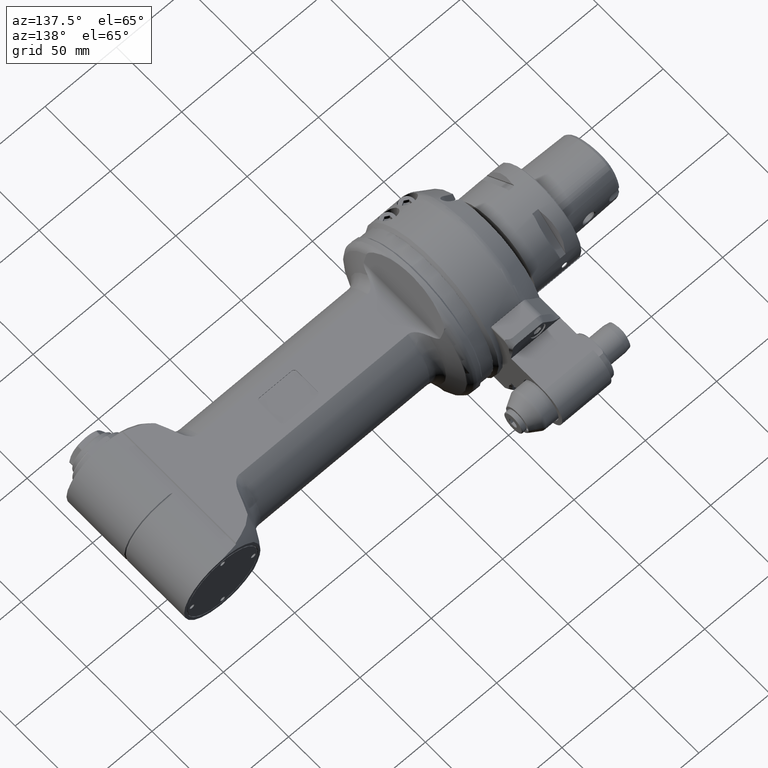
[diagram: clean part render]
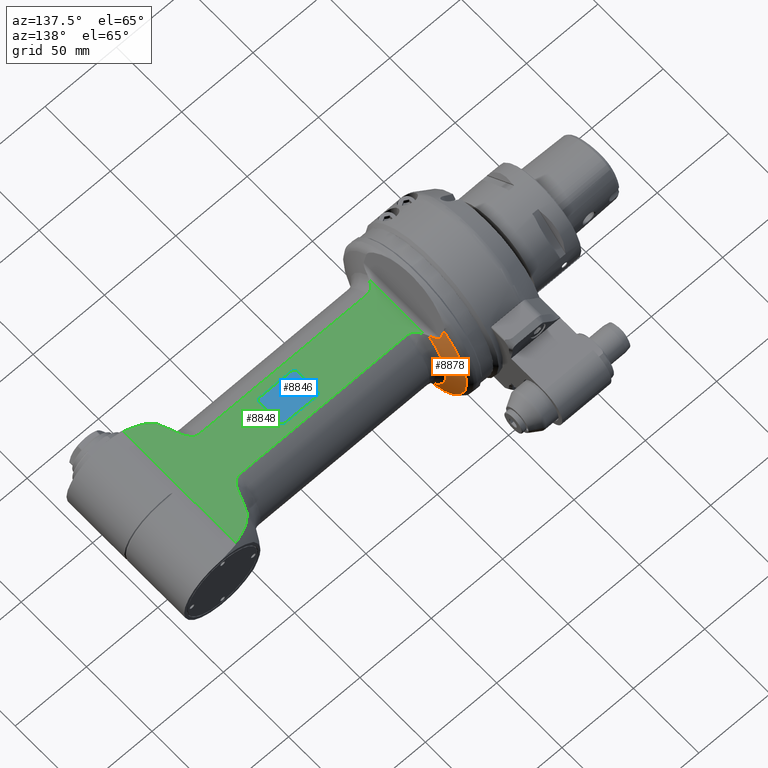
[diagram: same view with three faces highlighted in distinct colors, each labeled with its STEP entity id]
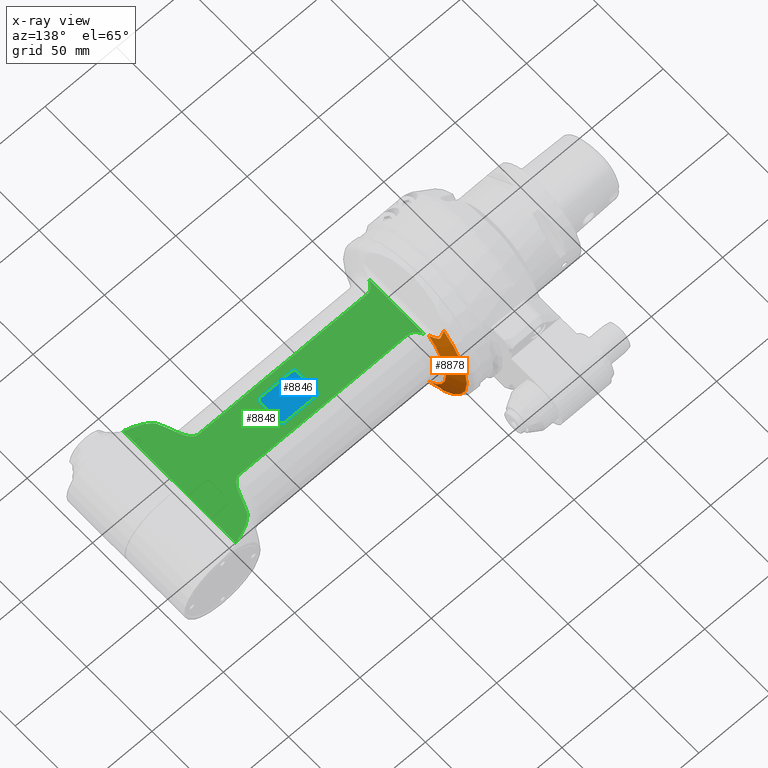
[diagram: x-ray of the same camera — body ghosted, the three highlighted faces saturated]
A machine part, auxiliary view with three faces highlighted in distinct colors.
The next image is the same camera in x-ray (body ghosted, the three faces saturated) — at least one of them is partly hidden behind the body in this view.
Their STEP definitions:

[orange] entity #8878 — the highlighted conical surface has half-angle 65 deg.
#36=ELLIPSE('',#9744,1.98296339590121,1.16481496966376);
#37=ELLIPSE('',#9746,1.98296339590121,1.16481496966375);
#660=CONICAL_SURFACE('',#9743,1.64827057805906,1.13446401379631);
#1078=FACE_OUTER_BOUND('',#1662,.T.);
#1662=EDGE_LOOP('',(#7716,#7717,#7718,#7719,#7720,#7721));
#2119=CIRCLE('',#9721,1.44169503567205);
#2130=CIRCLE('',#9745,1.85484612044606);
#2400=B_SPLINE_CURVE_WITH_KNOTS('',3,(#56886,#56887,#56888,#56889,#56890,
#56891,#56892,#56893,#56894,#56895,#56896,#56897,#56898,#56899,#56900,#56901),
 .UNSPECIFIED.,.F.,.F.,(4,2,2,2,2,2,2,4),(8.88484297411853,8.88995769916191,
8.93555493109357,8.98115216302524,9.07589668030658,9.17064119758792,9.36013023215059,
9.59514006222528),.UNSPECIFIED.);
#2417=B_SPLINE_CURVE_WITH_KNOTS('',3,(#57288,#57289,#57290,#57291,#57292,
#57293,#57294,#57295,#57296,#57297,#57298,#57299,#57300,#57301,#57302,#57303),
 .UNSPECIFIED.,.F.,.F.,(4,2,2,2,2,2,2,4),(-2.96280115665136,-2.95768643160798,
-2.91208919967632,-2.86649196774465,-2.77174745046331,-2.67700293318197,
-2.4875138986193,-2.25250406864222),.UNSPECIFIED.);
#4152=VERTEX_POINT('',#56878);
#4153=VERTEX_POINT('',#56885);
#4224=VERTEX_POINT('',#57285);
#4225=VERTEX_POINT('',#57287);
#4226=VERTEX_POINT('',#57333);
#4227=VERTEX_POINT('',#57335);
#5327=EDGE_CURVE('',#4153,#4152,#2400,.T.);
#5416=EDGE_CURVE('',#4224,#4225,#2417,.T.);
#5419=EDGE_CURVE('',#4225,#4152,#2119,.T.);
#5430=EDGE_CURVE('',#4226,#4224,#36,.T.);
#5431=EDGE_CURVE('',#4227,#4226,#2130,.T.);
#5432=EDGE_CURVE('',#4153,#4227,#37,.T.);
#7716=ORIENTED_EDGE('',*,*,#5327,.T.);
#7717=ORIENTED_EDGE('',*,*,#5419,.F.);
#7718=ORIENTED_EDGE('',*,*,#5416,.F.);
#7719=ORIENTED_EDGE('',*,*,#5430,.F.);
#7720=ORIENTED_EDGE('',*,*,#5431,.F.);
#7721=ORIENTED_EDGE('',*,*,#5432,.F.);
#8878=ADVANCED_FACE('',(#1078),#660,.T.);
#9721=AXIS2_PLACEMENT_3D('',#57310,#11729,#11730);
#9743=AXIS2_PLACEMENT_3D('',#57332,#11773,#11774);
#9744=AXIS2_PLACEMENT_3D('',#57334,#11775,#11776);
#9745=AXIS2_PLACEMENT_3D('',#57336,#11777,#11778);
#9746=AXIS2_PLACEMENT_3D('',#57337,#11779,#11780);
#11729=DIRECTION('center_axis',(1.,0.,0.));
#11730=DIRECTION('ref_axis',(0.,0.639797587775472,-0.768543457897266));
#11773=DIRECTION('center_axis',(-1.,0.,0.));
#11774=DIRECTION('ref_axis',(0.,1.,1.17450172150565E-10));
#11775=DIRECTION('center_axis',(0.939692620785897,0.,-0.342020143325699));
#11776=DIRECTION('ref_axis',(-0.342020143325699,3.16985680890781E-15,-0.939692620785897));
#11777=DIRECTION('center_axis',(-1.,0.,0.));
#11778=DIRECTION('ref_axis',(0.,1.,0.));
#11779=DIRECTION('center_axis',(0.939692620785897,0.,0.342020143325699));
#11780=DIRECTION('ref_axis',(-0.342020143325699,1.39349996950756E-15,0.939692620785897));
#56878=CARTESIAN_POINT('',(1.01337155814016,0.922393006127953,1.10800528794764));
#56885=CARTESIAN_POINT('',(0.907167705424409,1.15441444608071,1.20598107979134));
#56886=CARTESIAN_POINT('Ctrl Pts',(0.907167705424242,1.15441444608044,1.2059810797913));
#56887=CARTESIAN_POINT('Ctrl Pts',(0.907400569370583,1.15436064010383,1.20534129135692));
#56888=CARTESIAN_POINT('Ctrl Pts',(0.907635345906347,1.15429267722904,1.20470917437101));
#56889=CARTESIAN_POINT('Ctrl Pts',(0.909974389933711,1.15348947155251,1.19853064254002));
#56890=CARTESIAN_POINT('Ctrl Pts',(0.912495744870292,1.15154908394791,1.19288739405799));
#56891=CARTESIAN_POINT('Ctrl Pts',(0.917787363643207,1.1458516002294,1.18261079404907));
#56892=CARTESIAN_POINT('Ctrl Pts',(0.920553783278524,1.14212799383908,1.1779569337971));
#56893=CARTESIAN_POINT('Ctrl Pts',(0.928337377255171,1.13050864643465,1.16597308354995));
#56894=CARTESIAN_POINT('Ctrl Pts',(0.933346837259934,1.12149281873692,1.15975347633231));
#56895=CARTESIAN_POINT('Ctrl Pts',(0.943193765965154,1.10237522362485,1.14884864290702));
#56896=CARTESIAN_POINT('Ctrl Pts',(0.94802052386084,1.09222179241078,1.14424453302383));
#56897=CARTESIAN_POINT('Ctrl Pts',(0.962387348972176,1.06040414586269,1.13196090177535));
#56898=CARTESIAN_POINT('Ctrl Pts',(0.971769640119683,1.03748392116421,1.12584333687446));
#56899=CARTESIAN_POINT('Ctrl Pts',(0.992318011366266,0.98392245006033,1.11486513783193));
#56900=CARTESIAN_POINT('Ctrl Pts',(1.00325275214586,0.952965200553226,1.11078955891211));
#56901=CARTESIAN_POINT('Ctrl Pts',(1.01337155813942,0.922393006127625,1.10800528794858));
#57285=CARTESIAN_POINT('',(0.907167705424409,1.15441444608071,-1.20598107979134));
#57287=CARTESIAN_POINT('',(1.01337155812677,0.922393006165748,-1.10800528795157));
#57288=CARTESIAN_POINT('Ctrl Pts',(0.907167705424242,1.15441444608044,-1.2059810797913));
#57289=CARTESIAN_POINT('Ctrl Pts',(0.907400569370583,1.15436064010383,-1.20534129135692));
#57290=CARTESIAN_POINT('Ctrl Pts',(0.907635345906347,1.15429267722904,-1.20470917437101));
#57291=CARTESIAN_POINT('Ctrl Pts',(0.909974389933711,1.15348947155251,-1.19853064254002));
#57292=CARTESIAN_POINT('Ctrl Pts',(0.912495744870292,1.15154908394791,-1.19288739405799));
#57293=CARTESIAN_POINT('Ctrl Pts',(0.917787363643207,1.1458516002294,-1.18261079404907));
#57294=CARTESIAN_POINT('Ctrl Pts',(0.920553783278524,1.14212799383908,-1.1779569337971));
#57295=CARTESIAN_POINT('Ctrl Pts',(0.928337377255171,1.13050864643465,-1.16597308354995));
#57296=CARTESIAN_POINT('Ctrl Pts',(0.933346837259934,1.12149281873692,-1.15975347633231));
#57297=CARTESIAN_POINT('Ctrl Pts',(0.943193765965153,1.10237522362485,-1.14884864290703));
#57298=CARTESIAN_POINT('Ctrl Pts',(0.94802052386084,1.09222179241078,-1.14424453302383));
#57299=CARTESIAN_POINT('Ctrl Pts',(0.962387348972176,1.06040414586269,-1.13196090177535));
#57300=CARTESIAN_POINT('Ctrl Pts',(0.971769640119683,1.03748392116421,-1.12584333687446));
#57301=CARTESIAN_POINT('Ctrl Pts',(0.99231801136154,0.983922450072646,-1.11486513783446));
#57302=CARTESIAN_POINT('Ctrl Pts',(1.00325275213677,0.952965200578941,-1.11078955891551));
#57303=CARTESIAN_POINT('Ctrl Pts',(1.01337155812682,0.92239300616572,-1.10800528795204));
#57310=CARTESIAN_POINT('Origin',(1.01337155813858,0.,0.));
#57332=CARTESIAN_POINT('Origin',(0.917043800735827,0.,0.));
#57333=CARTESIAN_POINT('',(0.820716043487988,1.16479493723232,-1.44350506874806));
#57334=CARTESIAN_POINT('Origin',(0.81673846233816,2.09805925913415E-15,
-1.45443338322853));
#57335=CARTESIAN_POINT('',(0.820716043325997,1.1647949371114,1.44350506929202));
#57336=CARTESIAN_POINT('Origin',(0.820716043333464,0.,0.));
#57337=CARTESIAN_POINT('Origin',(0.816738462338159,6.99353086378051E-16,
1.45443338322852));

[blue] entity #8846 — the highlighted planar face has unit normal (0, -0, 1).
#517=PLANE('',#9668);
#1046=FACE_OUTER_BOUND('',#1626,.T.);
#1626=EDGE_LOOP('',(#7503,#7504,#7505,#7506,#7507,#7508,#7509,#7510));
#2090=CIRCLE('',#9669,0.078740157480315);
#2091=CIRCLE('',#9670,0.078740157480315);
#2092=CIRCLE('',#9671,0.078740157480315);
#2093=CIRCLE('',#9672,0.078740157480315);
#2812=LINE('',#56745,#3368);
#2816=LINE('',#56755,#3372);
#2817=LINE('',#56759,#3373);
#2818=LINE('',#56763,#3374);
#3368=VECTOR('',#11585,0.610236220472441);
#3372=VECTOR('',#11593,0.885826771653543);
#3373=VECTOR('',#11596,0.610236220472441);
#3374=VECTOR('',#11599,0.885826771653543);
#4120=VERTEX_POINT('',#56743);
#4121=VERTEX_POINT('',#56744);
#4124=VERTEX_POINT('',#56752);
#4125=VERTEX_POINT('',#56754);
#4126=VERTEX_POINT('',#56756);
#4127=VERTEX_POINT('',#56758);
#4128=VERTEX_POINT('',#56760);
#4129=VERTEX_POINT('',#56762);
#5291=EDGE_CURVE('',#4120,#4121,#2812,.T.);
#5295=EDGE_CURVE('',#4121,#4124,#2090,.T.);
#5296=EDGE_CURVE('',#4124,#4125,#2816,.T.);
#5297=EDGE_CURVE('',#4125,#4126,#2091,.T.);
#5298=EDGE_CURVE('',#4126,#4127,#2817,.T.);
#5299=EDGE_CURVE('',#4127,#4128,#2092,.T.);
#5300=EDGE_CURVE('',#4128,#4129,#2818,.T.);
#5301=EDGE_CURVE('',#4120,#4129,#2093,.T.);
#7503=ORIENTED_EDGE('',*,*,#5291,.T.);
#7504=ORIENTED_EDGE('',*,*,#5295,.T.);
#7505=ORIENTED_EDGE('',*,*,#5296,.T.);
#7506=ORIENTED_EDGE('',*,*,#5297,.T.);
#7507=ORIENTED_EDGE('',*,*,#5298,.T.);
#7508=ORIENTED_EDGE('',*,*,#5299,.T.);
#7509=ORIENTED_EDGE('',*,*,#5300,.T.);
#7510=ORIENTED_EDGE('',*,*,#5301,.F.);
#8846=ADVANCED_FACE('',(#1046),#517,.T.);
#9668=AXIS2_PLACEMENT_3D('',#56751,#11589,#11590);
#9669=AXIS2_PLACEMENT_3D('',#56753,#11591,#11592);
#9670=AXIS2_PLACEMENT_3D('',#56757,#11594,#11595);
#9671=AXIS2_PLACEMENT_3D('',#56761,#11597,#11598);
#9672=AXIS2_PLACEMENT_3D('',#56764,#11600,#11601);
#11585=DIRECTION('',(0.,-1.,0.));
#11589=DIRECTION('center_axis',(0.,0.,1.));
#11590=DIRECTION('ref_axis',(1.,0.,0.));
#11591=DIRECTION('center_axis',(0.,0.,1.));
#11592=DIRECTION('ref_axis',(-1.,0.,0.));
#11593=DIRECTION('',(1.,0.,0.));
#11594=DIRECTION('center_axis',(0.,0.,1.));
#11595=DIRECTION('ref_axis',(0.,-1.,0.));
#11596=DIRECTION('',(0.,1.,0.));
#11597=DIRECTION('center_axis',(0.,0.,1.));
#11598=DIRECTION('ref_axis',(1.,0.,0.));
#11599=DIRECTION('',(-1.,0.,0.));
#11600=DIRECTION('center_axis',(0.,0.,-1.));
#11601=DIRECTION('ref_axis',(-1.,0.,0.));
#56743=CARTESIAN_POINT('',(3.52362204724409,0.30511811023622,1.09055118110236));
#56744=CARTESIAN_POINT('',(3.52362204724409,-0.30511811023622,1.09055118110236));
#56745=CARTESIAN_POINT('',(3.52362204724409,0.30511811023622,1.09055118110236));
#56751=CARTESIAN_POINT('Origin',(0.,0.,1.09055118110236));
#56752=CARTESIAN_POINT('',(3.60236220472441,-0.383858267716535,1.09055118110236));
#56753=CARTESIAN_POINT('Origin',(3.60236220472441,-0.30511811023622,1.09055118110236));
#56754=CARTESIAN_POINT('',(4.48818897637795,-0.383858267716535,1.09055118110236));
#56755=CARTESIAN_POINT('',(3.60236220472441,-0.383858267716535,1.09055118110236));
#56756=CARTESIAN_POINT('',(4.56692913385827,-0.30511811023622,1.09055118110236));
#56757=CARTESIAN_POINT('Origin',(4.48818897637795,-0.30511811023622,1.09055118110236));
#56758=CARTESIAN_POINT('',(4.56692913385827,0.30511811023622,1.09055118110236));
#56759=CARTESIAN_POINT('',(4.56692913385827,-0.30511811023622,1.09055118110236));
#56760=CARTESIAN_POINT('',(4.48818897637795,0.383858267716535,1.09055118110236));
#56761=CARTESIAN_POINT('Origin',(4.48818897637795,0.30511811023622,1.09055118110236));
#56762=CARTESIAN_POINT('',(3.60236220472441,0.383858267716535,1.09055118110236));
#56763=CARTESIAN_POINT('',(4.48818897637795,0.383858267716535,1.09055118110236));
#56764=CARTESIAN_POINT('Origin',(3.60236220472441,0.30511811023622,1.09055118110236));

[green] entity #8848 — the highlighted planar face has unit normal (-0, 0, -1).
#168=FACE_BOUND('',#1629,.T.);
#291=(
BOUNDED_CURVE()
B_SPLINE_CURVE(2,(#56804,#56805,#56806),.UNSPECIFIED.,.F.,.F.)
B_SPLINE_CURVE_WITH_KNOTS((3,3),(2.03905498935001,3.44407312542204),
 .UNSPECIFIED.)
CURVE()
GEOMETRIC_REPRESENTATION_ITEM()
RATIONAL_B_SPLINE_CURVE((1.39135917189137,1.50428489588985,1.58701905543919))
REPRESENTATION_ITEM('')
);
#292=(
BOUNDED_CURVE()
B_SPLINE_CURVE(2,(#56808,#56809,#56810),.UNSPECIFIED.,.F.,.F.)
B_SPLINE_CURVE_WITH_KNOTS((3,3),(0.672694757765938,1.0163582077007),
 .UNSPECIFIED.)
CURVE()
GEOMETRIC_REPRESENTATION_ITEM()
RATIONAL_B_SPLINE_CURVE((1.09614308098479,1.11935470084547,1.14119005691676))
REPRESENTATION_ITEM('')
);
#293=(
BOUNDED_CURVE()
B_SPLINE_CURVE(2,(#56812,#56813,#56814),.UNSPECIFIED.,.F.,.F.)
B_SPLINE_CURVE_WITH_KNOTS((3,3),(0.271465996187347,0.534546799751592),
 .UNSPECIFIED.)
CURVE()
GEOMETRIC_REPRESENTATION_ITEM()
RATIONAL_B_SPLINE_CURVE((1.02892391271194,1.04269703320803,1.05600085778296))
REPRESENTATION_ITEM('')
);
#294=(
BOUNDED_CURVE()
B_SPLINE_CURVE(2,(#56816,#56817,#56818),.UNSPECIFIED.,.F.,.F.)
B_SPLINE_CURVE_WITH_KNOTS((3,3),(0.0555374134032069,0.267471577371549),
 .UNSPECIFIED.)
CURVE()
GEOMETRIC_REPRESENTATION_ITEM()
RATIONAL_B_SPLINE_CURVE((1.00475750584163,1.01380939095675,1.022666035555))
REPRESENTATION_ITEM('')
);
#295=(
BOUNDED_CURVE()
B_SPLINE_CURVE(2,(#56822,#56823,#56824),.UNSPECIFIED.,.F.,.F.)
B_SPLINE_CURVE_WITH_KNOTS((3,3),(19.4953049575878,19.7072391637784),
 .UNSPECIFIED.)
CURVE()
GEOMETRIC_REPRESENTATION_ITEM()
RATIONAL_B_SPLINE_CURVE((1.02266614007333,1.01380949456991,1.00475760852967))
REPRESENTATION_ITEM('')
);
#296=(
BOUNDED_CURVE()
B_SPLINE_CURVE(2,(#56826,#56827,#56828),.UNSPECIFIED.,.F.,.F.)
B_SPLINE_CURVE_WITH_KNOTS((3,3),(15.4491780876951,15.712242917743),
 .UNSPECIFIED.)
CURVE()
GEOMETRIC_REPRESENTATION_ITEM()
RATIONAL_B_SPLINE_CURVE((1.0559652880217,1.0426619115656,1.02888925499584))
REPRESENTATION_ITEM('')
);
#297=(
BOUNDED_CURVE()
B_SPLINE_CURVE(2,(#56830,#56831,#56832),.UNSPECIFIED.,.F.,.F.)
B_SPLINE_CURVE_WITH_KNOTS((3,3),(11.9199199966806,12.263555341558),
 .UNSPECIFIED.)
CURVE()
GEOMETRIC_REPRESENTATION_ITEM()
RATIONAL_B_SPLINE_CURVE((1.14112648064763,1.11929234103495,1.09608201430523))
REPRESENTATION_ITEM('')
);
#298=(
BOUNDED_CURVE()
B_SPLINE_CURVE(2,(#56834,#56835,#56836),.UNSPECIFIED.,.F.,.F.)
B_SPLINE_CURVE_WITH_KNOTS((3,3),(11.1423435471514,12.5471695034818),
 .UNSPECIFIED.)
CURVE()
GEOMETRIC_REPRESENTATION_ITEM()
RATIONAL_B_SPLINE_CURVE((1.58681804929736,1.50409436855994,1.39118294732867))
REPRESENTATION_ITEM('')
);
#518=PLANE('',#9675);
#1048=FACE_OUTER_BOUND('',#1628,.T.);
#1628=EDGE_LOOP('',(#7515,#7516,#7517,#7518,#7519,#7520,#7521,#7522,#7523,
#7524,#7525,#7526,#7527,#7528,#7529,#7530));
#1629=EDGE_LOOP('',(#7531,#7532,#7533,#7534,#7535,#7536,#7537,#7538));
#2094=CIRCLE('',#9674,0.078740157480315);
#2095=CIRCLE('',#9676,0.078740157480315);
#2096=CIRCLE('',#9677,0.078740157480315);
#2097=CIRCLE('',#9678,0.078740157480315);
#2395=B_SPLINE_CURVE_WITH_KNOTS('',3,(#56774,#56775,#56776,#56777,#56778,
#56779,#56780,#56781,#56782,#56783,#56784,#56785),.UNSPECIFIED.,.F.,.F.,
(4,2,2,2,2,4),(-2.93597407218818,-2.82337724519284,-2.69378102431655,-2.51186335157645,
-2.32994567883634,-2.12339512890314),.UNSPECIFIED.);
#2396=B_SPLINE_CURVE_WITH_KNOTS('',3,(#56789,#56790,#56791,#56792,#56793,
#56794,#56795,#56796,#56797,#56798,#56799,#56800,#56801,#56802),
 .UNSPECIFIED.,.F.,.F.,(4,2,2,2,2,2,4),(-3.92307824233944,-3.77852981809237,
-3.54200246554002,-3.36008479279991,-3.17816712005981,-3.04857089918351,
-2.93597407218818),.UNSPECIFIED.);
#2397=B_SPLINE_CURVE_WITH_KNOTS('',3,(#56838,#56839,#56840,#56841,#56842,
#56843,#56844,#56845,#56846,#56847,#56848,#56849,#56850,#56851),
 .UNSPECIFIED.,.F.,.F.,(4,2,2,2,2,2,4),(-2.93597407218818,-2.82337724519285,
-2.69378102431655,-2.51186335157645,-2.32994567883634,-2.09341832628399,
-1.94886990203693),.UNSPECIFIED.);
#2398=B_SPLINE_CURVE_WITH_KNOTS('',3,(#56854,#56855,#56856,#56857,#56858,
#56859,#56860,#56861,#56862,#56863,#56864,#56865),.UNSPECIFIED.,.F.,.F.,
(4,2,2,2,2,4),(-3.74855301568806,-3.54200246554002,-3.36008479279991,-3.17816712005981,
-3.04857089918352,-2.93597407218818),.UNSPECIFIED.);
#2814=LINE('',#56749,#3370);
#2820=LINE('',#56772,#3376);
#2821=LINE('',#56787,#3377);
#2822=LINE('',#56820,#3378);
#2823=LINE('',#56853,#3379);
#2824=LINE('',#56867,#3380);
#2825=LINE('',#56871,#3381);
#2826=LINE('',#56875,#3382);
#3370=VECTOR('',#11587,0.610236220472441);
#3376=VECTOR('',#11609,1.64449587747835);
#3377=VECTOR('',#11610,4.66106684935039);
#3378=VECTOR('',#11611,0.393700787401575);
#3379=VECTOR('',#11612,4.66106684935039);
#3380=VECTOR('',#11613,0.885826771653543);
#3381=VECTOR('',#11616,0.610236220472441);
#3382=VECTOR('',#11619,0.885826771653543);
#4122=VERTEX_POINT('',#56746);
#4123=VERTEX_POINT('',#56748);
#4130=VERTEX_POINT('',#56766);
#4131=VERTEX_POINT('',#56770);
#4132=VERTEX_POINT('',#56771);
#4133=VERTEX_POINT('',#56773);
#4134=VERTEX_POINT('',#56786);
#4135=VERTEX_POINT('',#56788);
#4136=VERTEX_POINT('',#56803);
#4137=VERTEX_POINT('',#56807);
#4138=VERTEX_POINT('',#56811);
#4139=VERTEX_POINT('',#56815);
#4140=VERTEX_POINT('',#56819);
#4141=VERTEX_POINT('',#56821);
#4142=VERTEX_POINT('',#56825);
#4143=VERTEX_POINT('',#56829);
#4144=VERTEX_POINT('',#56833);
#4145=VERTEX_POINT('',#56837);
#4146=VERTEX_POINT('',#56852);
#4147=VERTEX_POINT('',#56866);
#4148=VERTEX_POINT('',#56868);
#4149=VERTEX_POINT('',#56870);
#4150=VERTEX_POINT('',#56872);
#4151=VERTEX_POINT('',#56874);
#5293=EDGE_CURVE('',#4123,#4122,#2814,.T.);
#5303=EDGE_CURVE('',#4122,#4130,#2094,.T.);
#5304=EDGE_CURVE('',#4131,#4132,#2820,.T.);
#5305=EDGE_CURVE('',#4133,#4131,#2395,.T.);
#5306=EDGE_CURVE('',#4134,#4133,#2821,.T.);
#5307=EDGE_CURVE('',#4135,#4134,#2396,.T.);
#5308=EDGE_CURVE('',#4136,#4135,#291,.T.);
#5309=EDGE_CURVE('',#4137,#4136,#292,.T.);
#5310=EDGE_CURVE('',#4138,#4137,#293,.T.);
#5311=EDGE_CURVE('',#4139,#4138,#294,.T.);
#5312=EDGE_CURVE('',#4140,#4139,#2822,.T.);
#5313=EDGE_CURVE('',#4141,#4140,#295,.T.);
#5314=EDGE_CURVE('',#4142,#4141,#296,.T.);
#5315=EDGE_CURVE('',#4143,#4142,#297,.T.);
#5316=EDGE_CURVE('',#4144,#4143,#298,.T.);
#5317=EDGE_CURVE('',#4145,#4144,#2397,.T.);
#5318=EDGE_CURVE('',#4146,#4145,#2823,.T.);
#5319=EDGE_CURVE('',#4132,#4146,#2398,.T.);
#5320=EDGE_CURVE('',#4130,#4147,#2824,.T.);
#5321=EDGE_CURVE('',#4147,#4148,#2095,.T.);
#5322=EDGE_CURVE('',#4148,#4149,#2825,.T.);
#5323=EDGE_CURVE('',#4149,#4150,#2096,.T.);
#5324=EDGE_CURVE('',#4150,#4151,#2826,.T.);
#5325=EDGE_CURVE('',#4151,#4123,#2097,.T.);
#7515=ORIENTED_EDGE('',*,*,#5304,.F.);
#7516=ORIENTED_EDGE('',*,*,#5305,.F.);
#7517=ORIENTED_EDGE('',*,*,#5306,.F.);
#7518=ORIENTED_EDGE('',*,*,#5307,.F.);
#7519=ORIENTED_EDGE('',*,*,#5308,.F.);
#7520=ORIENTED_EDGE('',*,*,#5309,.F.);
#7521=ORIENTED_EDGE('',*,*,#5310,.F.);
#7522=ORIENTED_EDGE('',*,*,#5311,.F.);
#7523=ORIENTED_EDGE('',*,*,#5312,.F.);
#7524=ORIENTED_EDGE('',*,*,#5313,.F.);
#7525=ORIENTED_EDGE('',*,*,#5314,.F.);
#7526=ORIENTED_EDGE('',*,*,#5315,.F.);
#7527=ORIENTED_EDGE('',*,*,#5316,.F.);
#7528=ORIENTED_EDGE('',*,*,#5317,.F.);
#7529=ORIENTED_EDGE('',*,*,#5318,.F.);
#7530=ORIENTED_EDGE('',*,*,#5319,.F.);
#7531=ORIENTED_EDGE('',*,*,#5293,.T.);
#7532=ORIENTED_EDGE('',*,*,#5303,.T.);
#7533=ORIENTED_EDGE('',*,*,#5320,.T.);
#7534=ORIENTED_EDGE('',*,*,#5321,.T.);
#7535=ORIENTED_EDGE('',*,*,#5322,.T.);
#7536=ORIENTED_EDGE('',*,*,#5323,.T.);
#7537=ORIENTED_EDGE('',*,*,#5324,.T.);
#7538=ORIENTED_EDGE('',*,*,#5325,.T.);
#8848=ADVANCED_FACE('',(#1048,#168),#518,.F.);
#9674=AXIS2_PLACEMENT_3D('',#56768,#11605,#11606);
#9675=AXIS2_PLACEMENT_3D('',#56769,#11607,#11608);
#9676=AXIS2_PLACEMENT_3D('',#56869,#11614,#11615);
#9677=AXIS2_PLACEMENT_3D('',#56873,#11617,#11618);
#9678=AXIS2_PLACEMENT_3D('',#56876,#11620,#11621);
#11587=DIRECTION('',(0.,1.,0.));
#11605=DIRECTION('center_axis',(0.,0.,-1.));
#11606=DIRECTION('ref_axis',(-1.,0.,0.));
#11607=DIRECTION('center_axis',(0.,0.,-1.));
#11608=DIRECTION('ref_axis',(-1.,0.,0.));
#11609=DIRECTION('',(-2.605461445507E-11,1.,6.049025988375E-13));
#11610=DIRECTION('',(-1.,0.,0.));
#11611=DIRECTION('',(0.,-1.,0.));
#11612=DIRECTION('',(1.,0.,0.));
#11613=DIRECTION('',(1.,0.,0.));
#11614=DIRECTION('center_axis',(0.,0.,-1.));
#11615=DIRECTION('ref_axis',(0.,1.,0.));
#11616=DIRECTION('',(0.,-1.,0.));
#11617=DIRECTION('center_axis',(0.,0.,-1.));
#11618=DIRECTION('ref_axis',(1.,0.,0.));
#11619=DIRECTION('',(-1.,0.,0.));
#11620=DIRECTION('center_axis',(0.,0.,-1.));
#11621=DIRECTION('ref_axis',(4.973799150321E-14,-1.,0.));
#56746=CARTESIAN_POINT('',(3.52362204724409,0.30511811023622,1.10236220472441));
#56748=CARTESIAN_POINT('',(3.52362204724409,-0.30511811023622,1.10236220472441));
#56749=CARTESIAN_POINT('',(3.52362204724409,-0.30511811023622,1.10236220472441));
#56766=CARTESIAN_POINT('',(3.60236220472441,0.383858267716535,1.10236220472441));
#56768=CARTESIAN_POINT('Origin',(3.60236220472441,0.30511811023622,1.10236220472441));
#56769=CARTESIAN_POINT('Origin',(2.5606268359874,-1.77165354330709,1.10236220472441));
#56770=CARTESIAN_POINT('',(1.05515079532047,-0.822247938698031,1.10236220472402));
#56771=CARTESIAN_POINT('',(1.05515079527756,0.822247938779921,1.1023622047252));
#56772=CARTESIAN_POINT('',(1.05515079532047,-0.822247938698031,1.10236220472402));
#56773=CARTESIAN_POINT('',(1.29882282964606,-0.609918637198032,1.10236220472441));
#56774=CARTESIAN_POINT('Ctrl Pts',(1.29882282964606,-0.609918637198018,
1.10236220472441));
#56775=CARTESIAN_POINT('Ctrl Pts',(1.28404634316374,-0.609918637198018,
1.10236220472441));
#56776=CARTESIAN_POINT('Ctrl Pts',(1.2665310619091,-0.612681077884935,1.10236220472441));
#56777=CARTESIAN_POINT('Ctrl Pts',(1.23613090131474,-0.621957083575724,
1.10236220472441));
#56778=CARTESIAN_POINT('Ctrl Pts',(1.21775821384649,-0.630843346219757,
1.10236220472441));
#56779=CARTESIAN_POINT('Ctrl Pts',(1.18322042895185,-0.652715813008636,
1.10236220472441));
#56780=CARTESIAN_POINT('Ctrl Pts',(1.16341058116586,-0.669610331500759,
1.10236220472441));
#56781=CARTESIAN_POINT('Ctrl Pts',(1.12759374615375,-0.707291425706547,
1.10236220472441));
#56782=CARTESIAN_POINT('Ctrl Pts',(1.11154299302949,-0.728036376621218,
1.10236220472441));
#56783=CARTESIAN_POINT('Ctrl Pts',(1.08290520393707,-0.770212741657021,
1.10236220472441));
#56784=CARTESIAN_POINT('Ctrl Pts',(1.06817565313616,-0.795647902450741,
1.10236220472441));
#56785=CARTESIAN_POINT('Ctrl Pts',(1.0551507953193,-0.822247938697457,1.10236220472441));
#56786=CARTESIAN_POINT('',(5.95988967899606,-0.609918637198032,1.10236220472441));
#56787=CARTESIAN_POINT('',(5.95988967899606,-0.609918637198032,1.10236220472441));
#56788=CARTESIAN_POINT('',(6.23265358570079,-0.890843188896457,1.10236220472441));
#56789=CARTESIAN_POINT('Ctrl Pts',(6.23265358569994,-0.890843188896763,
1.10236220472441));
#56790=CARTESIAN_POINT('Ctrl Pts',(6.22579523798971,-0.871943804981987,
1.10236220472441));
#56791=CARTESIAN_POINT('Ctrl Pts',(6.21789661909274,-0.852710079953337,
1.10236220472441));
#56792=CARTESIAN_POINT('Ctrl Pts',(6.19477582516281,-0.80310686554737,1.10236220472441));
#56793=CARTESIAN_POINT('Ctrl Pts',(6.17801718778163,-0.773467351676782,
1.10236220472441));
#56794=CARTESIAN_POINT('Ctrl Pts',(6.14716951561264,-0.728036376621217,
1.10236220472441));
#56795=CARTESIAN_POINT('Ctrl Pts',(6.13111876248837,-0.707291425706547,
1.10236220472441));
#56796=CARTESIAN_POINT('Ctrl Pts',(6.09530192747626,-0.669610331500759,
1.10236220472441));
#56797=CARTESIAN_POINT('Ctrl Pts',(6.07549207969027,-0.652715813008636,
1.10236220472441));
#56798=CARTESIAN_POINT('Ctrl Pts',(6.04095429479564,-0.630843346219757,
1.10236220472441));
#56799=CARTESIAN_POINT('Ctrl Pts',(6.02258160732738,-0.621957083575723,
1.10236220472441));
#56800=CARTESIAN_POINT('Ctrl Pts',(5.99218144673303,-0.612681077884934,
1.10236220472441));
#56801=CARTESIAN_POINT('Ctrl Pts',(5.97466616547839,-0.609918637198018,
1.10236220472441));
#56802=CARTESIAN_POINT('Ctrl Pts',(5.95988967899606,-0.609918637198018,
1.10236220472441));
#56803=CARTESIAN_POINT('',(6.4372265157276,-1.38692243730871,1.10236220472421));
#56804=CARTESIAN_POINT('Ctrl Pts',(6.43722651572742,-1.38692243730977,1.10236220472441));
#56805=CARTESIAN_POINT('Ctrl Pts',(6.31266287166401,-1.11132285485823,1.10236220472441));
#56806=CARTESIAN_POINT('Ctrl Pts',(6.23265358569894,-0.890843188897127,
1.10236220472441));
#56807=CARTESIAN_POINT('',(6.62624240498402,-1.53492824327766,1.10236220472428));
#56808=CARTESIAN_POINT('Ctrl Pts',(6.62624240498941,-1.53492824328213,1.10236220472441));
#56809=CARTESIAN_POINT('Ctrl Pts',(6.526947177898,-1.45853814987678,1.10236220472441));
#56810=CARTESIAN_POINT('Ctrl Pts',(6.43722651572794,-1.38692243730937,1.10236220472441));
#56811=CARTESIAN_POINT('',(6.84257920966527,-1.63089095883542,1.10236220472438));
#56812=CARTESIAN_POINT('Ctrl Pts',(6.84257920966725,-1.63089095883689,1.10236220472441));
#56813=CARTESIAN_POINT('Ctrl Pts',(6.73113199291576,-1.58193038967515,1.10236220472441));
#56814=CARTESIAN_POINT('Ctrl Pts',(6.62624240498844,-1.53492824327984,1.10236220472441));
#56815=CARTESIAN_POINT('',(7.04685039370079,-1.69655254219433,1.10236220472441));
#56816=CARTESIAN_POINT('Ctrl Pts',(7.04685039370079,-1.69655254219433,1.10236220472441));
#56817=CARTESIAN_POINT('Ctrl Pts',(6.94269932503141,-1.66327157856401,1.10236220472441));
#56818=CARTESIAN_POINT('Ctrl Pts',(6.84257920966719,-1.63089095883557,1.10236220472441));
#56819=CARTESIAN_POINT('',(7.04685039370079,1.69655254219433,1.10236220472441));
#56820=CARTESIAN_POINT('',(7.04685039370079,-0.885826771653543,1.10236220472441));
#56821=CARTESIAN_POINT('',(6.84257920966527,1.63089095883542,1.10236220472438));
#56822=CARTESIAN_POINT('Ctrl Pts',(6.84257920966719,1.63089095883557,1.10236220472441));
#56823=CARTESIAN_POINT('Ctrl Pts',(6.94269932503141,1.66327157856401,1.10236220472441));
#56824=CARTESIAN_POINT('Ctrl Pts',(7.04685039370079,1.69655254219433,1.10236220472441));
#56825=CARTESIAN_POINT('',(6.62624240498402,1.53492824327766,1.10236220472428));
#56826=CARTESIAN_POINT('Ctrl Pts',(6.62624240498844,1.53492824327984,1.10236220472441));
#56827=CARTESIAN_POINT('Ctrl Pts',(6.73113199291576,1.58193038967515,1.10236220472441));
#56828=CARTESIAN_POINT('Ctrl Pts',(6.84257920966726,1.63089095883689,1.10236220472441));
#56829=CARTESIAN_POINT('',(6.4372265157276,1.38692243730871,1.10236220472422));
#56830=CARTESIAN_POINT('Ctrl Pts',(6.43722651572794,1.38692243730937,1.10236220472441));
#56831=CARTESIAN_POINT('Ctrl Pts',(6.526947177898,1.45853814987678,1.10236220472441));
#56832=CARTESIAN_POINT('Ctrl Pts',(6.62624240498941,1.53492824328213,1.10236220472441));
#56833=CARTESIAN_POINT('',(6.23265358570079,0.890843188896457,1.10236220472441));
#56834=CARTESIAN_POINT('Ctrl Pts',(6.23265358569894,0.890843188897133,1.10236220472441));
#56835=CARTESIAN_POINT('Ctrl Pts',(6.31266287166401,1.11132285485824,1.10236220472441));
#56836=CARTESIAN_POINT('Ctrl Pts',(6.43722651572742,1.38692243730977,1.10236220472441));
#56837=CARTESIAN_POINT('',(5.95988967899606,0.609918637198032,1.10236220472441));
#56838=CARTESIAN_POINT('Ctrl Pts',(5.95988967899606,0.609918637198018,1.10236220472441));
#56839=CARTESIAN_POINT('Ctrl Pts',(5.97466616547839,0.609918637198018,1.10236220472441));
#56840=CARTESIAN_POINT('Ctrl Pts',(5.99218144673303,0.612681077884934,1.10236220472441));
#56841=CARTESIAN_POINT('Ctrl Pts',(6.02258160732738,0.621957083575723,1.10236220472441));
#56842=CARTESIAN_POINT('Ctrl Pts',(6.04095429479564,0.630843346219757,1.10236220472441));
#56843=CARTESIAN_POINT('Ctrl Pts',(6.07549207969027,0.652715813008636,1.10236220472441));
#56844=CARTESIAN_POINT('Ctrl Pts',(6.09530192747626,0.669610331500759,1.10236220472441));
#56845=CARTESIAN_POINT('Ctrl Pts',(6.13111876248837,0.707291425706547,1.10236220472441));
#56846=CARTESIAN_POINT('Ctrl Pts',(6.14716951561264,0.728036376621217,1.10236220472441));
#56847=CARTESIAN_POINT('Ctrl Pts',(6.17801718778163,0.773467351676782,1.10236220472441));
#56848=CARTESIAN_POINT('Ctrl Pts',(6.19477582516281,0.80310686554737,1.10236220472441));
#56849=CARTESIAN_POINT('Ctrl Pts',(6.21789661909274,0.852710079953337,1.10236220472441));
#56850=CARTESIAN_POINT('Ctrl Pts',(6.2257952379897,0.871943804981987,1.10236220472441));
#56851=CARTESIAN_POINT('Ctrl Pts',(6.23265358569994,0.890843188896763,1.10236220472441));
#56852=CARTESIAN_POINT('',(1.29882282964606,0.609918637198032,1.10236220472441));
#56853=CARTESIAN_POINT('',(1.29882282964606,0.609918637198032,1.10236220472441));
#56854=CARTESIAN_POINT('Ctrl Pts',(1.05515079527866,0.822247938780459,1.10236220472441));
#56855=CARTESIAN_POINT('Ctrl Pts',(1.06817565310565,0.79564790250372,1.10236220472441));
#56856=CARTESIAN_POINT('Ctrl Pts',(1.08290520392123,0.770212741680346,1.10236220472441));
#56857=CARTESIAN_POINT('Ctrl Pts',(1.11154299302949,0.728036376621218,1.10236220472441));
#56858=CARTESIAN_POINT('Ctrl Pts',(1.12759374615375,0.707291425706547,1.10236220472441));
#56859=CARTESIAN_POINT('Ctrl Pts',(1.16341058116586,0.669610331500759,1.10236220472441));
#56860=CARTESIAN_POINT('Ctrl Pts',(1.18322042895185,0.652715813008636,1.10236220472441));
#56861=CARTESIAN_POINT('Ctrl Pts',(1.21775821384649,0.630843346219757,1.10236220472441));
#56862=CARTESIAN_POINT('Ctrl Pts',(1.23613090131474,0.621957083575724,1.10236220472441));
#56863=CARTESIAN_POINT('Ctrl Pts',(1.2665310619091,0.612681077884935,1.10236220472441));
#56864=CARTESIAN_POINT('Ctrl Pts',(1.28404634316374,0.609918637198018,1.10236220472441));
#56865=CARTESIAN_POINT('Ctrl Pts',(1.29882282964606,0.609918637198018,1.10236220472441));
#56866=CARTESIAN_POINT('',(4.48818897637795,0.383858267716535,1.10236220472441));
#56867=CARTESIAN_POINT('',(3.60236220472441,0.383858267716535,1.10236220472441));
#56868=CARTESIAN_POINT('',(4.56692913385827,0.30511811023622,1.10236220472441));
#56869=CARTESIAN_POINT('Origin',(4.48818897637795,0.30511811023622,1.10236220472441));
#56870=CARTESIAN_POINT('',(4.56692913385827,-0.30511811023622,1.10236220472441));
#56871=CARTESIAN_POINT('',(4.56692913385827,0.30511811023622,1.10236220472441));
#56872=CARTESIAN_POINT('',(4.48818897637795,-0.383858267716535,1.10236220472441));
#56873=CARTESIAN_POINT('Origin',(4.48818897637795,-0.30511811023622,1.10236220472441));
#56874=CARTESIAN_POINT('',(3.60236220472441,-0.383858267716535,1.10236220472441));
#56875=CARTESIAN_POINT('',(4.48818897637795,-0.383858267716535,1.10236220472441));
#56876=CARTESIAN_POINT('Origin',(3.60236220472441,-0.30511811023622,1.10236220472441));